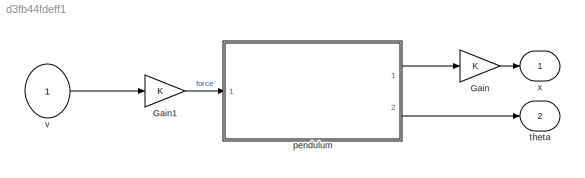
MODEL slx_d3fb44fdeff1
KIND model
CONFIG AbsTol = auto
CONFIG FixedStep = 0.0005
CONFIG MaxStep = auto
CONFIG MinStep = auto
CONFIG RelTol = 1e-6
CONFIG SampleTimeConstraint = Unconstrained
CONFIG Solver = ode45
CONFIG SolverMode = SingleTasking
CONFIG SolverName = ode45
CONFIG StartTime = 0.0
CONFIG StopTime = 10
BLOCK [Gain] Gain
  OutDataTypeStr = Inherit: Inherit via internal rule
  ParamDataTypeStr = Inherit: Inherit via internal rule
  SaturateOnIntegerOverflow = off
BLOCK [Gain] Gain1
  OutDataTypeStr = Inherit: Inherit via internal rule
  ParamDataTypeStr = Inherit: Inherit via internal rule
  SaturateOnIntegerOverflow = off
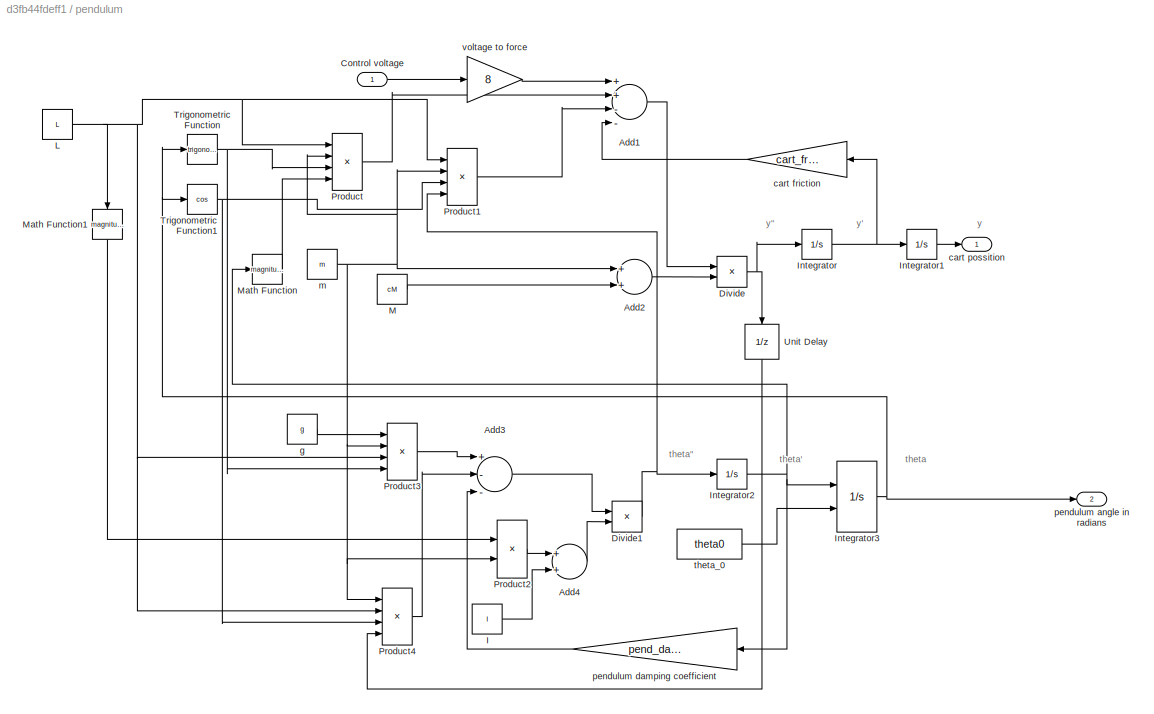
BLOCK [SubSystem] pendulum
  Ports = [1, 2]
  RequestExecContextInheritance = off
BLOCK [Sum] pendulum/Add1
  InputSameDT = off
  Inputs = ++--
  OutDataTypeStr = Inherit: Inherit via internal rule
  Ports = [4, 1]
  SaturateOnIntegerOverflow = off
BLOCK [Sum] pendulum/Add2
  InputSameDT = off
  OutDataTypeStr = Inherit: Inherit via internal rule
  Ports = [2, 1]
  SaturateOnIntegerOverflow = off
BLOCK [Sum] pendulum/Add3
  InputSameDT = off
  Inputs = +--
  OutDataTypeStr = Inherit: Inherit via internal rule
  Ports = [3, 1]
  SaturateOnIntegerOverflow = off
BLOCK [Sum] pendulum/Add4
  InputSameDT = off
  OutDataTypeStr = Inherit: Inherit via internal rule
  Ports = [2, 1]
  SaturateOnIntegerOverflow = off
BLOCK [Inport] pendulum/Control voltage
  IconDisplay = Port number
BLOCK [Product] pendulum/Divide
  InputSameDT = off
  Inputs = */
  OutDataTypeStr = Inherit: Inherit via internal rule
  Ports = [2, 1]
  RndMeth = Floor
  SaturateOnIntegerOverflow = off
BLOCK [Product] pendulum/Divide1
  InputSameDT = off
  Inputs = */
  OutDataTypeStr = Inherit: Inherit via internal rule
  Ports = [2, 1]
  RndMeth = Floor
  SaturateOnIntegerOverflow = off
BLOCK [Constant] pendulum/I
  Value = I
BLOCK [Integrator] pendulum/Integrator
  Ports = [1, 1]
BLOCK [Integrator] pendulum/Integrator1
  Ports = [1, 1]
BLOCK [Integrator] pendulum/Integrator2
  Ports = [1, 1]
BLOCK [Integrator] pendulum/Integrator3
  InitialConditionSource = external
  Ports = [2, 1]
BLOCK [Constant] pendulum/L
  Value = L
BLOCK [Constant] pendulum/M
  Value = cM
BLOCK [Math] pendulum/Math Function
  Operator = magnitude^2
  Ports = [1, 1]
BLOCK [Math] pendulum/Math Function1
  Operator = magnitude^2
  Ports = [1, 1]
BLOCK [Product] pendulum/Product
  InputSameDT = off
  Inputs = 4
  OutDataTypeStr = Inherit: Inherit via internal rule
  Ports = [4, 1]
  SaturateOnIntegerOverflow = off
BLOCK [Product] pendulum/Product1
  InputSameDT = off
  Inputs = 4
  OutDataTypeStr = Inherit: Inherit via internal rule
  Ports = [4, 1]
  SaturateOnIntegerOverflow = off
BLOCK [Product] pendulum/Product2
  InputSameDT = off
  OutDataTypeStr = Inherit: Inherit via internal rule
  Ports = [2, 1]
  SaturateOnIntegerOverflow = off
BLOCK [Product] pendulum/Product3
  InputSameDT = off
  Inputs = 4
  OutDataTypeStr = Inherit: Inherit via internal rule
  Ports = [4, 1]
  SaturateOnIntegerOverflow = off
BLOCK [Product] pendulum/Product4
  InputSameDT = off
  Inputs = 4
  OutDataTypeStr = Inherit: Inherit via internal rule
  Ports = [4, 1]
  SaturateOnIntegerOverflow = off
BLOCK [Trigonometry] pendulum/Trigonometric Function
  Ports = [1, 1]
BLOCK [Trigonometry] pendulum/Trigonometric Function1
  Operator = cos
  Ports = [1, 1]
BLOCK [UnitDelay] pendulum/Unit Delay
  SampleTime = 0.001
BLOCK [Gain] pendulum/cart friction
  Gain = cart_friction
  OutDataTypeStr = Inherit: Inherit via internal rule
  ParamDataTypeStr = Inherit: Inherit via internal rule
  SaturateOnIntegerOverflow = off
BLOCK [Outport] pendulum/cart possition
  IconDisplay = Port number
BLOCK [Constant] pendulum/g
  Value = g
BLOCK [Constant] pendulum/m
  Value = m
BLOCK [Outport] pendulum/pendulum angle in radians
  IconDisplay = Port number
  Port = 2
BLOCK [Gain] pendulum/pendulum damping coefficient
  Gain = pend_damp
  OutDataTypeStr = Inherit: Inherit via internal rule
  ParamDataTypeStr = Inherit: Inherit via internal rule
  SaturateOnIntegerOverflow = off
BLOCK [Constant] pendulum/theta_0
  Value = theta0
BLOCK [Gain] pendulum/voltage to force
  Gain = 8
  OutDataTypeStr = Inherit: Inherit via internal rule
  ParamDataTypeStr = Inherit: Inherit via internal rule
  SaturateOnIntegerOverflow = off
BLOCK [Outport] theta
  IconDisplay = Port number
  Port = 2
BLOCK [Inport] v
  IconDisplay = Port number
BLOCK [Outport] x
  IconDisplay = Port number
ANNOTATION pendulum: theta
ANNOTATION pendulum: theta"
ANNOTATION pendulum: theta'
ANNOTATION pendulum: y
ANNOTATION pendulum: y"
ANNOTATION pendulum: y'
LINE Gain1:1 -> pendulum:1
LINE Gain:1 -> x:1
LINE pendulum/Add1:1 -> pendulum/Divide:1
LINE pendulum/Add2:1 -> pendulum/Divide:2
LINE pendulum/Add3:1 -> pendulum/Divide1:1
LINE pendulum/Add4:1 -> pendulum/Divide1:2
LINE pendulum/Control voltage:1 -> pendulum/voltage to force:1
NET pendulum/Divide1:1 -> pendulum/Integrator2:1, pendulum/Product1:4
NET pendulum/Divide:1 -> pendulum/Integrator:1, pendulum/Unit Delay:1
LINE pendulum/I:1 -> pendulum/Add4:2
LINE pendulum/Integrator1:1 -> pendulum/cart possition:1
NET pendulum/Integrator2:1 -> pendulum/Integrator3:1, pendulum/Math Function:1, pendulum/pendulum damping coefficient:1
NET pendulum/Integrator3:1 -> pendulum/Trigonometric Function1:1, pendulum/Trigonometric Function:1, pendulum/pendulum angle in radians:1
NET pendulum/Integrator:1 -> pendulum/Integrator1:1, pendulum/cart friction:1
NET pendulum/L:1 -> pendulum/Math Function1:1, pendulum/Product1:1, pendulum/Product3:3, pendulum/Product4:2, pendulum/Product:1
LINE pendulum/M:1 -> pendulum/Add2:2
LINE pendulum/Math Function1:1 -> pendulum/Product2:1
LINE pendulum/Math Function:1 -> pendulum/Product:4
LINE pendulum/Product1:1 -> pendulum/Add1:3
LINE pendulum/Product2:1 -> pendulum/Add4:1
LINE pendulum/Product3:1 -> pendulum/Add3:1
LINE pendulum/Product4:1 -> pendulum/Add3:2
LINE pendulum/Product:1 -> pendulum/Add1:2
NET pendulum/Trigonometric Function1:1 -> pendulum/Product1:3, pendulum/Product4:3
NET pendulum/Trigonometric Function:1 -> pendulum/Product3:4, pendulum/Product:3
LINE pendulum/Unit Delay:1 -> pendulum/Product4:4
LINE pendulum/cart friction:1 -> pendulum/Add1:4
LINE pendulum/g:1 -> pendulum/Product3:1
NET pendulum/m:1 -> pendulum/Add2:1, pendulum/Product1:2, pendulum/Product2:2, pendulum/Product3:2, pendulum/Product4:1, pendulum/Product:2
LINE pendulum/pendulum damping coefficient:1 -> pendulum/Add3:3
LINE pendulum/theta_0:1 -> pendulum/Integrator3:2
LINE pendulum/voltage to force:1 -> pendulum/Add1:1
LINE pendulum:1 -> Gain:1
LINE pendulum:2 -> theta:1
LINE v:1 -> Gain1:1
note: NET lines group one-source signal fan-out (src -> all destinations, sorted); 1:1 wires keep LINE
